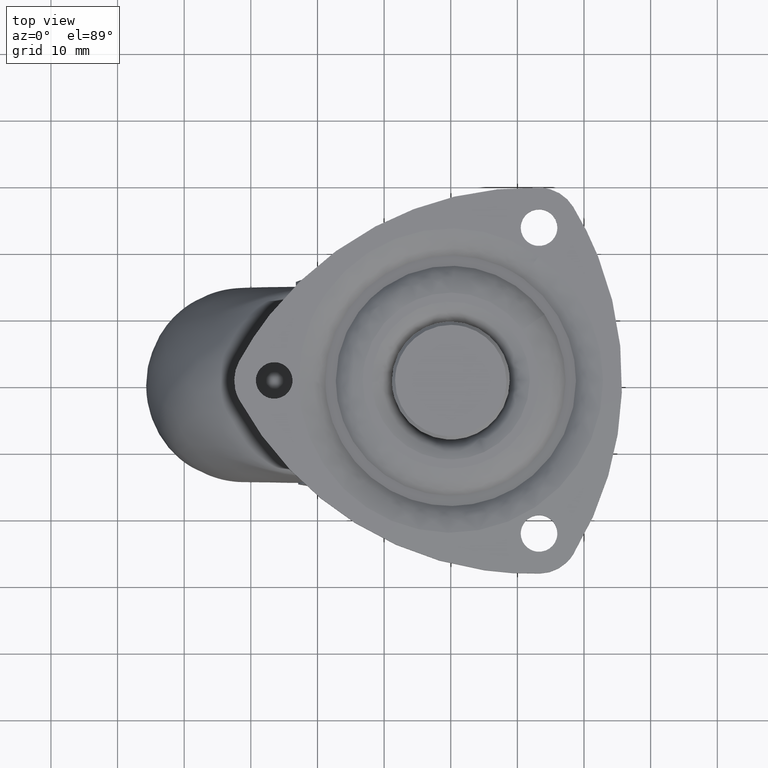
[diagram: clean part render]
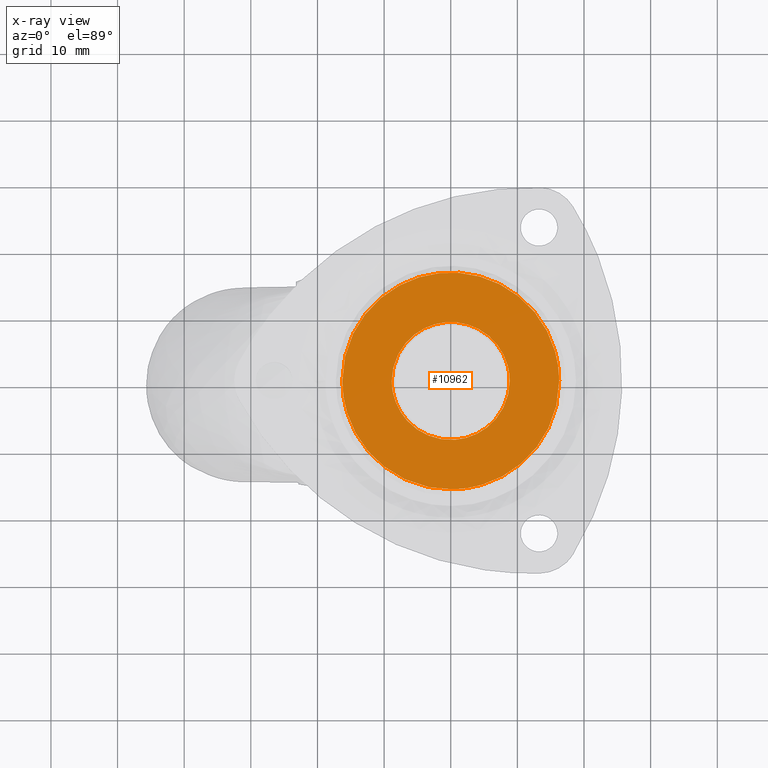
[diagram: x-ray — body ghosted, one internal face saturated and labeled with its STEP entity id]
A machine part, top view, then the same camera in x-ray: the body is ghosted and one INTERNAL B-rep face — a face not visible from any outside direction — is saturated and labeled: STEP entity #10962.
In plain terms, the highlighted face is a freeform B-spline surface patch.
Its self-contained STEP definition (entity closure, byte-faithful):
#6756=CARTESIAN_POINT('',(-8.229300115007565,-3.255936058514734,-4.368775000000000));
#6757=VERTEX_POINT('',#6756);
#6763=CARTESIAN_POINT('',(0.694362997244609,-8.822718403533996,-4.368775000000000));
#6764=VERTEX_POINT('',#6763);
#6765=CARTESIAN_POINT('',(0.694362997244609,-8.822718403533996,-4.368774999999999));
#6766=CARTESIAN_POINT('',(0.347717447071301,-8.850000000000000,-4.368775000000000));
#6767=CARTESIAN_POINT('',(0.0,-8.850000000000000,-4.368775000000000));
#6768=CARTESIAN_POINT('',(-6.015999561342831,-8.850000000000000,-4.368774999999999));
#6769=CARTESIAN_POINT('',(-8.229300115007565,-3.255936058514733,-4.368775000000000));
#6777=(BOUNDED_CURVE()B_SPLINE_CURVE(2,(#6765,#6766,#6767,#6768,#6769),.UNSPECIFIED.,.F.,.U.)B_SPLINE_CURVE_WITH_KNOTS((3,2,3),(0.736331300630700,0.750000000000000,0.937532549938868),.UNSPECIFIED.)CURVE()GEOMETRIC_REPRESENTATION_ITEM()RATIONAL_B_SPLINE_CURVE((0.969723356167503,0.983986122578930,1.0,0.780291951264442,0.890203187500662))REPRESENTATION_ITEM(''));
#6778=EDGE_CURVE('',#6764,#6757,#6777,.T.);
#6890=CARTESIAN_POINT('',(8.850000000000000,0.0,-4.368775000000000));
#6891=VERTEX_POINT('',#6890);
#6892=CARTESIAN_POINT('',(8.850000000000000,0.0,-4.368775000000000));
#6893=CARTESIAN_POINT('',(8.850000000000000,-8.180855851076240,-4.368775000000000));
#6894=CARTESIAN_POINT('',(0.694362997244609,-8.822718403533996,-4.368775000000000));
#6902=(BOUNDED_CURVE()B_SPLINE_CURVE(2,(#6892,#6893,#6894),.UNSPECIFIED.,.F.,.U.)B_SPLINE_CURVE_WITH_KNOTS((3,3),(0.500000000000000,0.736331300630701),.UNSPECIFIED.)CURVE()GEOMETRIC_REPRESENTATION_ITEM()RATIONAL_B_SPLINE_CURVE((1.0,0.723120658607617,0.969723356167504))REPRESENTATION_ITEM(''));
#6903=EDGE_CURVE('',#6891,#6764,#6902,.T.);
#6905=CARTESIAN_POINT('',(-8.850000000000000,0.0,-4.368775000000000));
#6906=VERTEX_POINT('',#6905);
#6907=CARTESIAN_POINT('',(-8.850000000000000,0.0,-4.368775000000000));
#6908=CARTESIAN_POINT('',(-8.850000000000000,8.850000000000000,-4.368775000000000));
#6909=CARTESIAN_POINT('',(0.0,8.850000000000000,-4.368775000000000));
#6910=CARTESIAN_POINT('',(8.850000000000000,8.850000000000000,-4.368775000000000));
#6911=CARTESIAN_POINT('',(8.850000000000000,0.0,-4.368775000000000));
#6919=(BOUNDED_CURVE()B_SPLINE_CURVE(2,(#6907,#6908,#6909,#6910,#6911),.UNSPECIFIED.,.F.,.U.)B_SPLINE_CURVE_WITH_KNOTS((3,2,3),(0.0,0.250000000000000,0.500000000000000),.UNSPECIFIED.)CURVE()GEOMETRIC_REPRESENTATION_ITEM()RATIONAL_B_SPLINE_CURVE((1.0,0.707106781186547,1.0,0.707106781186547,1.0))REPRESENTATION_ITEM(''));
#6920=EDGE_CURVE('',#6906,#6891,#6919,.T.);
#6922=CARTESIAN_POINT('',(-8.229300115007565,-3.255936058514735,-4.368775000000000));
#6923=CARTESIAN_POINT('',(-8.850000000000000,-1.687132020865620,-4.368775000000000));
#6924=CARTESIAN_POINT('',(-8.850000000000000,0.0,-4.368775000000000));
#6932=(BOUNDED_CURVE()B_SPLINE_CURVE(2,(#6922,#6923,#6924),.UNSPECIFIED.,.F.,.U.)B_SPLINE_CURVE_WITH_KNOTS((3,3),(0.937532549938868,1.0),.UNSPECIFIED.)CURVE()GEOMETRIC_REPRESENTATION_ITEM()RATIONAL_B_SPLINE_CURVE((0.890203187500662,0.926814829922106,1.0))REPRESENTATION_ITEM(''));
#6933=EDGE_CURVE('',#6757,#6906,#6932,.T.);
#10145=CARTESIAN_POINT('',(0.408987509443110,-16.269669477115549,-4.368775000003080));
#10146=VERTEX_POINT('',#10145);
#10160=CARTESIAN_POINT('',(-16.274809236281651,0.0,-4.368775000000000));
#10161=VERTEX_POINT('',#10160);
#10162=CARTESIAN_POINT('',(0.408987509443110,-16.269669477115553,-4.368775000003081));
#10163=CARTESIAN_POINT('',(0.204526050487389,-16.274809236281648,-4.368775000000000));
#10164=CARTESIAN_POINT('',(0.0,-16.274809236281651,-4.368775000000000));
#10165=CARTESIAN_POINT('',(-16.274809236281648,-16.274809236281648,-4.368775000000000));
#10166=CARTESIAN_POINT('',(-16.274809236281651,0.0,-4.368775000000000));
#10174=(BOUNDED_CURVE()B_SPLINE_CURVE(2,(#10162,#10163,#10164,#10165,#10166),.UNSPECIFIED.,.F.,.U.)B_SPLINE_CURVE_WITH_KNOTS((3,2,3),(0.745579891769525,0.750000000000000,1.0),.UNSPECIFIED.)CURVE()GEOMETRIC_REPRESENTATION_ITEM()RATIONAL_B_SPLINE_CURVE((0.989826157680937,0.994821521091489,1.0,0.707106781186547,1.0))REPRESENTATION_ITEM(''));
#10175=EDGE_CURVE('',#10146,#10161,#10174,.T.);
#10177=CARTESIAN_POINT('',(16.269669477115499,0.408987509442908,-4.368775000003033));
#10178=VERTEX_POINT('',#10177);
#10179=CARTESIAN_POINT('',(-16.274809236281651,0.0,-4.368775000000000));
#10180=CARTESIAN_POINT('',(-16.274809236281648,16.274809236281648,-4.368775000000000));
#10181=CARTESIAN_POINT('',(0.0,16.274809236281651,-4.368775000000000));
#10182=CARTESIAN_POINT('',(15.870833906257047,16.274809236281651,-4.368775000000000));
#10183=CARTESIAN_POINT('',(16.269669477115499,0.408987509442908,-4.368775000003033));
#10191=(BOUNDED_CURVE()B_SPLINE_CURVE(2,(#10179,#10180,#10181,#10182,#10183),.UNSPECIFIED.,.F.,.U.)B_SPLINE_CURVE_WITH_KNOTS((3,2,3),(0.0,0.250000000000000,0.495579891769529),.UNSPECIFIED.)CURVE()GEOMETRIC_REPRESENTATION_ITEM()RATIONAL_B_SPLINE_CURVE((1.0,0.707106781186547,1.0,0.712285260095054,0.989826157680946))REPRESENTATION_ITEM(''));
#10192=EDGE_CURVE('',#10161,#10178,#10191,.T.);
#10233=CARTESIAN_POINT('',(16.274809236281651,0.0,-4.368775000000000));
#10234=VERTEX_POINT('',#10233);
#10235=CARTESIAN_POINT('',(16.269669477115503,0.408987509442908,-4.368775000003033));
#10236=CARTESIAN_POINT('',(16.274809236281655,0.204526050487187,-4.368775000000000));
#10237=CARTESIAN_POINT('',(16.274809236281651,0.0,-4.368775000000000));
#10245=(BOUNDED_CURVE()B_SPLINE_CURVE(2,(#10235,#10236,#10237),.UNSPECIFIED.,.F.,.U.)B_SPLINE_CURVE_WITH_KNOTS((3,3),(0.495579891769529,0.500000000000000),.UNSPECIFIED.)CURVE()GEOMETRIC_REPRESENTATION_ITEM()RATIONAL_B_SPLINE_CURVE((0.989826157680946,0.994821521091494,1.0))REPRESENTATION_ITEM(''));
#10246=EDGE_CURVE('',#10178,#10234,#10245,.T.);
#10248=CARTESIAN_POINT('',(16.274809236281651,0.0,-4.368775000000000));
#10249=CARTESIAN_POINT('',(16.274809236281651,-15.870833906256729,-4.368774999999999));
#10250=CARTESIAN_POINT('',(0.408987509443110,-16.269669477115546,-4.368775000003080));
#10258=(BOUNDED_CURVE()B_SPLINE_CURVE(2,(#10248,#10249,#10250),.UNSPECIFIED.,.F.,.U.)B_SPLINE_CURVE_WITH_KNOTS((3,3),(0.500000000000000,0.745579891769525),.UNSPECIFIED.)CURVE()GEOMETRIC_REPRESENTATION_ITEM()RATIONAL_B_SPLINE_CURVE((1.0,0.712285260095058,0.989826157680938))REPRESENTATION_ITEM(''));
#10259=EDGE_CURVE('',#10234,#10146,#10258,.T.);
#10945=CARTESIAN_POINT('',(17.900662310346171,-17.895201062931591,-4.368774999999999));
#10946=CARTESIAN_POINT('',(-17.900663474411239,-17.895201062931591,-4.368774999999999));
#10947=CARTESIAN_POINT('',(17.900662310346171,17.899058356310420,-4.368775000000000));
#10948=CARTESIAN_POINT('',(-17.900663474411239,17.899058356310420,-4.368775000000000));
#10949=B_SPLINE_SURFACE_WITH_KNOTS('',1,1,((#10945,#10947),(#10946,#10948)),.UNSPECIFIED.,.F.,.F.,.U.,(2,2),(2,2),(0.0,35.801325784757417),(0.0,35.794259419242010),.UNSPECIFIED.);
#10950=ORIENTED_EDGE('',*,*,#10175,.F.);
#10951=ORIENTED_EDGE('',*,*,#10259,.F.);
#10952=ORIENTED_EDGE('',*,*,#10246,.F.);
#10953=ORIENTED_EDGE('',*,*,#10192,.F.);
#10954=EDGE_LOOP('',(#10950,#10951,#10952,#10953));
#10955=FACE_OUTER_BOUND('',#10954,.T.);
#10956=ORIENTED_EDGE('',*,*,#6920,.T.);
#10957=ORIENTED_EDGE('',*,*,#6903,.T.);
#10958=ORIENTED_EDGE('',*,*,#6778,.T.);
#10959=ORIENTED_EDGE('',*,*,#6933,.T.);
#10960=EDGE_LOOP('',(#10956,#10957,#10958,#10959));
#10961=FACE_BOUND('',#10960,.T.);
#10962=ADVANCED_FACE('',(#10955,#10961),#10949,.F.);